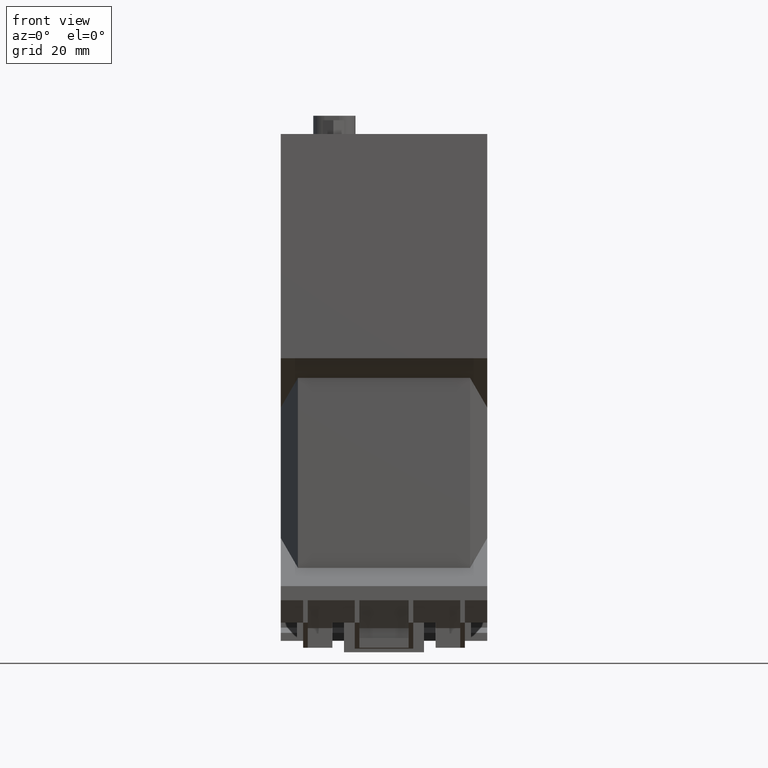
[diagram: clean part render]
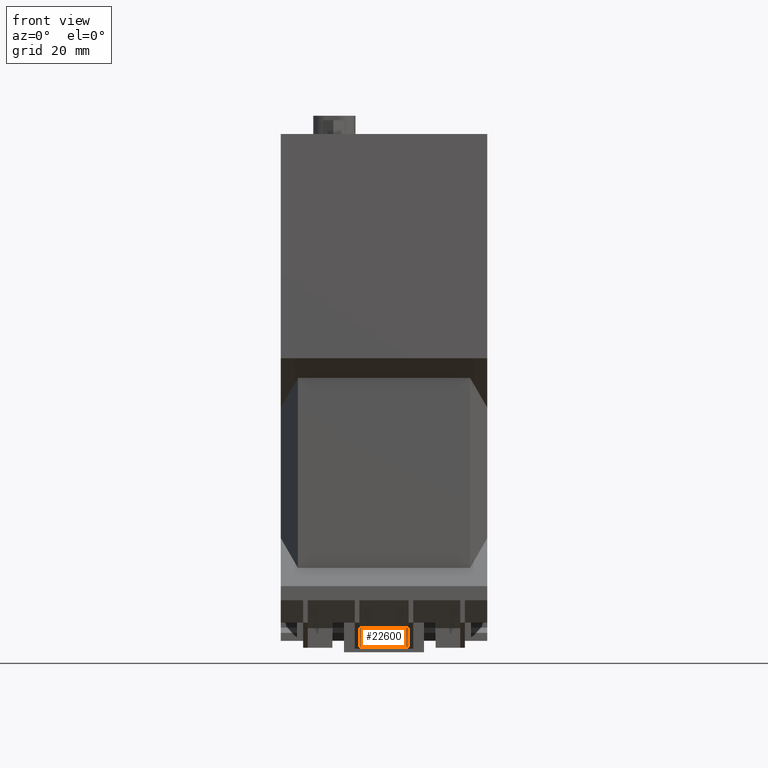
[diagram: same view with one face highlighted and labeled with its STEP entity id]
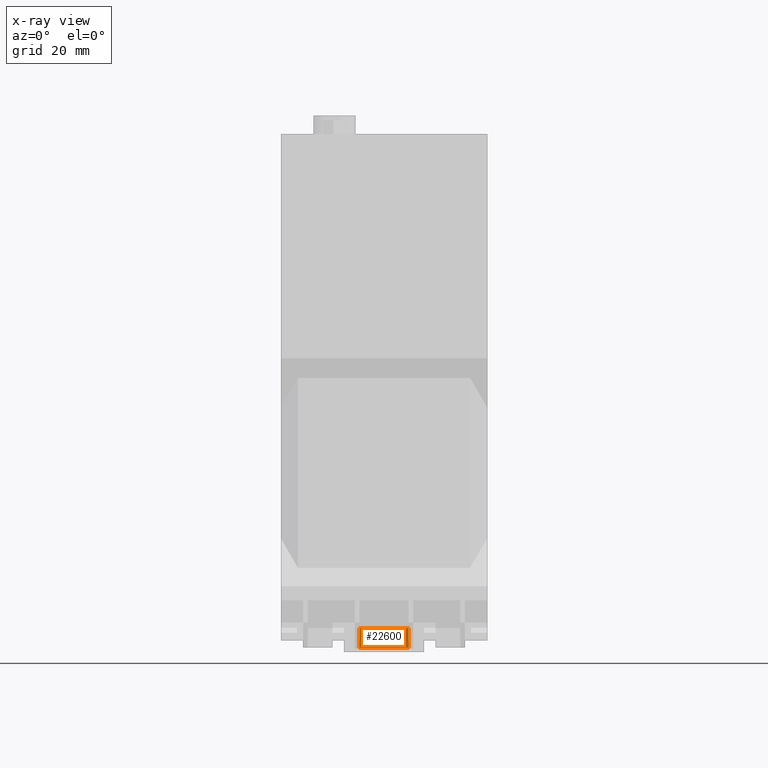
[diagram: x-ray of the same camera — body ghosted, the highlighted face saturated]
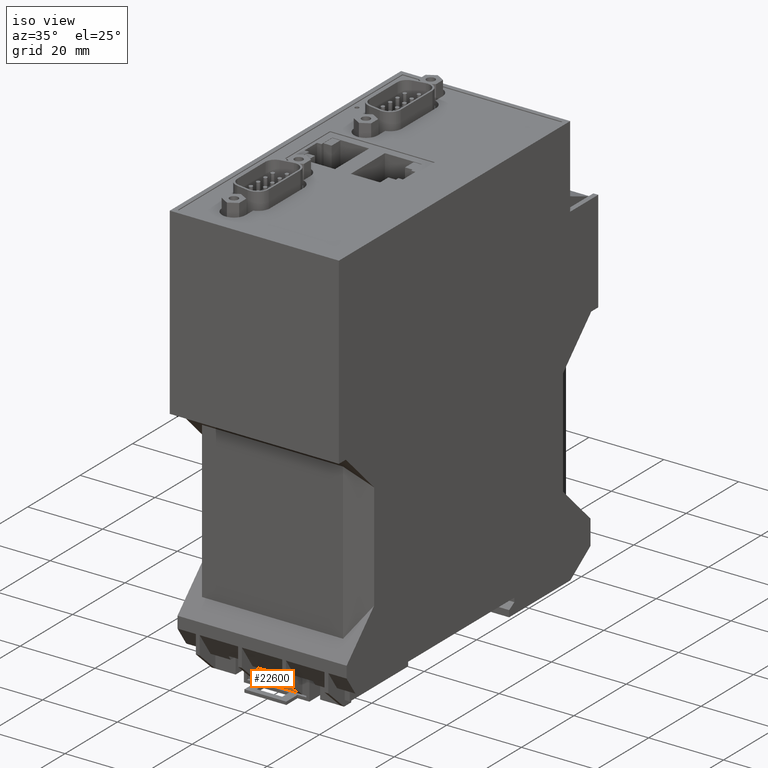
[diagram: same view with one face highlighted and labeled with its STEP entity id]
A machine part, front view. The second image highlights one B-rep face of the part: STEP entity #22600.
The next image is the same camera in x-ray: the body ghosted, the highlighted face saturated — about 0% of this face is hidden behind the body in this view.
A second angle (iso view) of the same face is appended — the face is thin or edge-on in the first view.
In plain terms, the highlighted planar face has unit normal (0, 1, 0).
Its self-contained STEP definition (entity closure, byte-faithful):
#15320=CARTESIAN_POINT('',(-58.0000000000013,-1.20000000000038,16.7));
#15330=VERTEX_POINT('',#15320);
#15380=CARTESIAN_POINT('',(-58.0000000000013,-1.20000000000038,0.));
#15390=DIRECTION('',(0.,0.,-1.));
#15400=VECTOR('',#15390,1.);
#15410=LINE('',#15380,#15400);
#15420=CARTESIAN_POINT('',(-58.0000000000013,-1.20000000000038,5.9));
#15430=VERTEX_POINT('',#15420);
#15440=EDGE_CURVE('',#15330,#15430,#15410,.T.);
#20260=CARTESIAN_POINT('',(-58.0000000000013,-5.50000000000271,0.));
#20270=DIRECTION('',(0.,0.,1.));
#20280=VECTOR('',#20270,1.);
#20290=LINE('',#20260,#20280);
#20300=CARTESIAN_POINT('',(-58.0000000000136,-5.49999999999153,5.9));
#20310=VERTEX_POINT('',#20300);
#20320=CARTESIAN_POINT('',(-58.0000000000136,-5.49999999999153,16.7));
#20330=VERTEX_POINT('',#20320);
#20340=EDGE_CURVE('',#20310,#20330,#20290,.T.);
#21430=CARTESIAN_POINT('',(-58.0000000000013,24.,5.9));
#21440=DIRECTION('',(0.,1.,0.));
#21450=VECTOR('',#21440,1.);
#21460=LINE('',#21430,#21450);
#21470=EDGE_CURVE('',#20310,#15430,#21460,.T.);
#22440=CARTESIAN_POINT('',(-58.0000000000013,-1.20000000000024,11.3));
#22450=DIRECTION('',(1.,0.,0.));
#22460=DIRECTION('',(0.,1.,0.));
#22470=AXIS2_PLACEMENT_3D('',#22440,#22450,#22460);
#22480=PLANE('',#22470);
#22490=ORIENTED_EDGE('',*,*,#20340,.T.);
#22500=ORIENTED_EDGE('',*,*,#21470,.F.);
#22510=ORIENTED_EDGE('',*,*,#15440,.T.);
#22520=CARTESIAN_POINT('',(-58.0000000000013,24.,16.7));
#22530=DIRECTION('',(0.,-1.,0.));
#22540=VECTOR('',#22530,1.);
#22550=LINE('',#22520,#22540);
#22560=EDGE_CURVE('',#15330,#20330,#22550,.T.);
#22570=ORIENTED_EDGE('',*,*,#22560,.F.);
#22580=EDGE_LOOP('',(#22570,#22510,#22500,#22490));
#22590=FACE_OUTER_BOUND('',#22580,.T.);
#22600=ADVANCED_FACE('',(#22590),#22480,.F.);